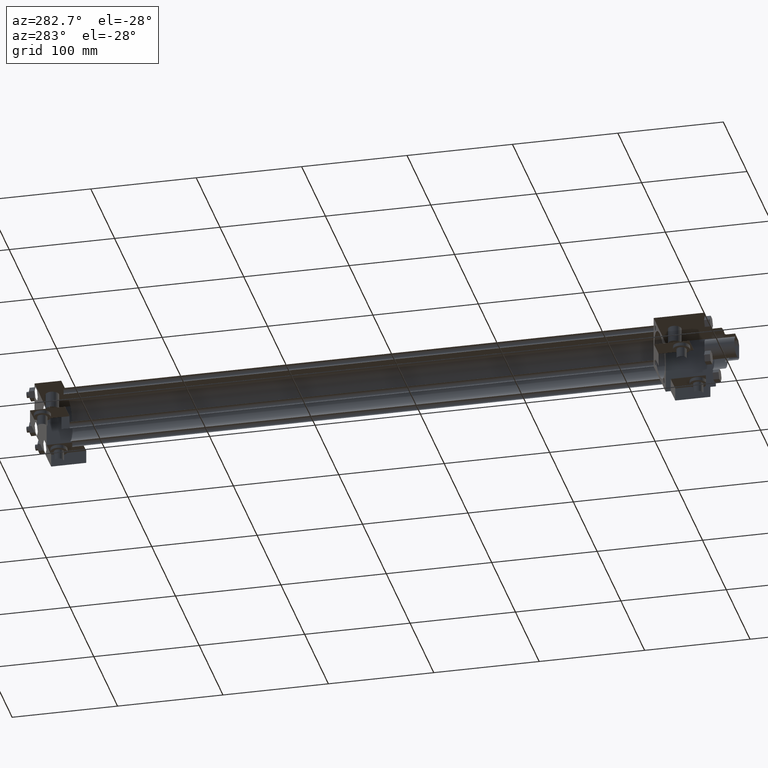
[diagram: clean part render]
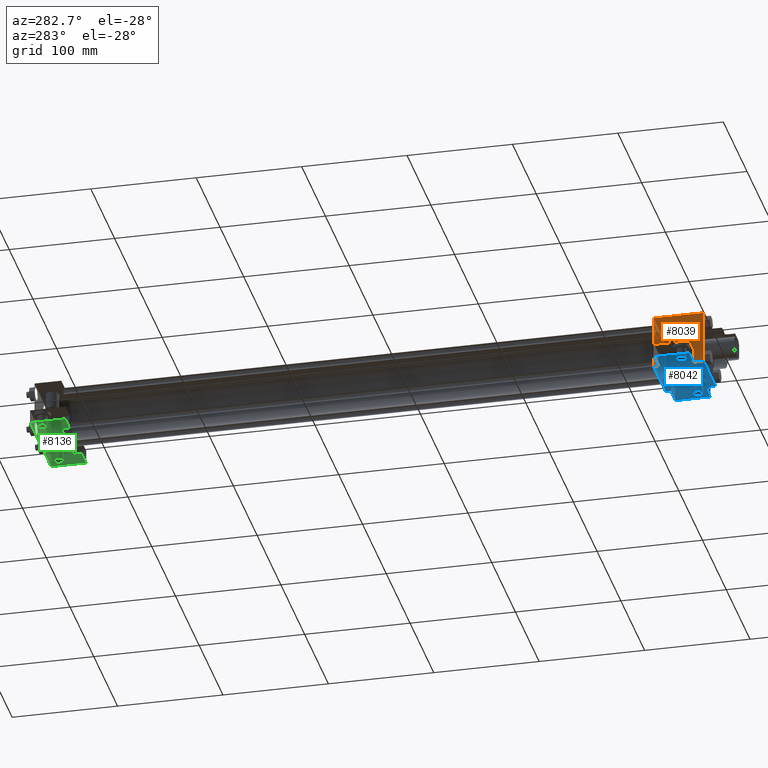
[diagram: same view with three faces highlighted in distinct colors, each labeled with its STEP entity id]
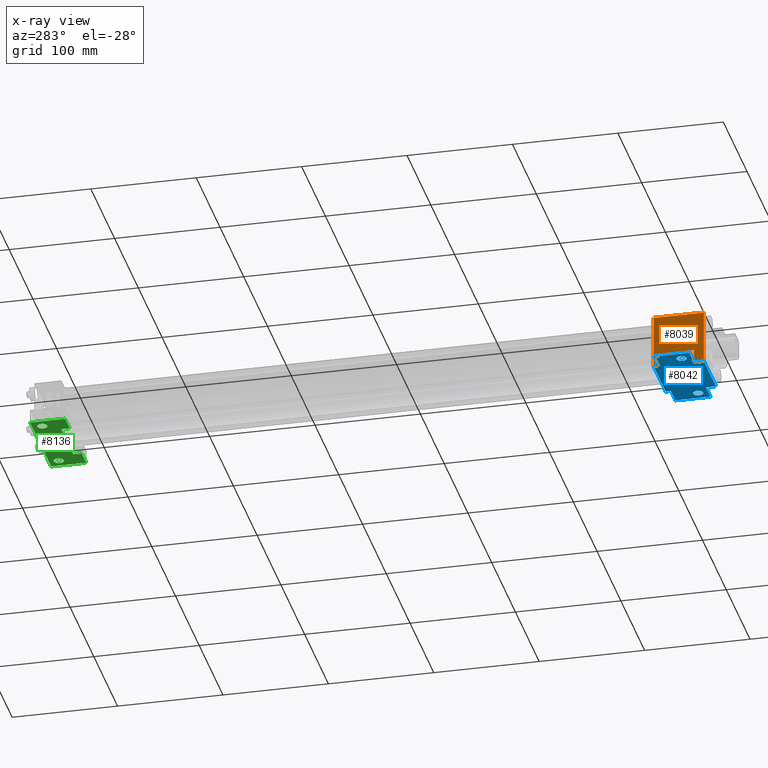
[diagram: x-ray of the same camera — body ghosted, the three highlighted faces saturated]
A machine part, auxiliary view with three faces highlighted in distinct colors.
The next image is the same camera in x-ray (body ghosted, the three faces saturated) — at least one of them is partly hidden behind the body in this view.
Their STEP definitions:

[orange] entity #8039 — the highlighted planar face has unit normal (-1, 0, 0).
#2037=EDGE_CURVE('',#2043,#2043,#2038,.T.);
#2038=CIRCLE('',#2039,2.778125000E+000);
#2039=AXIS2_PLACEMENT_3D('',#2040,#2041,#2042);
#2040=CARTESIAN_POINT('',(-2.540000000E+001,5.556250000E+001,0.000000000E+000));
#2041=DIRECTION('',(1.0E+000,0.0E+000,0.0E+000));
#2042=DIRECTION('',(0.0E+000,0.0E+000,1.0E+000));
#2043=VERTEX_POINT('',#2044);
#2044=CARTESIAN_POINT('',(-2.540000000E+001,5.556250000E+001,2.778125000E+000));
#2302=EDGE_CURVE('',#2307,#2308,#2303,.T.);
#2303=LINE('',#2304,#2305);
#2304=CARTESIAN_POINT('',(-2.540000000E+001,3.492500000E+001,-1.270000000E+001));
#2305=VECTOR('',#2306,1.0E+000);
#2306=DIRECTION('',(0.0E+000,-1.0E+000,0.0E+000));
#2307=VERTEX_POINT('',#2309);
#2308=VERTEX_POINT('',#2310);
#2309=CARTESIAN_POINT('',(-2.540000000E+001,6.826250000E+001,-1.270000000E+001));
#2310=CARTESIAN_POINT('',(-2.540000000E+001,3.492500000E+001,-1.270000000E+001));
#2347=VERTEX_POINT('',#2349);
#2349=CARTESIAN_POINT('',(-2.540000000E+001,6.826250000E+001,-2.540000000E+001));
#2355=EDGE_CURVE('',#2307,#2347,#2356,.T.);
#2356=LINE('',#2357,#2358);
#2357=CARTESIAN_POINT('',(-2.540000000E+001,6.826250000E+001,-1.270000000E+001));
#2358=VECTOR('',#2359,1.0E+000);
#2359=DIRECTION('',(0.0E+000,0.0E+000,-1.0E+000));
#2399=VERTEX_POINT('',#2400);
#2400=CARTESIAN_POINT('',(-2.540000000E+001,3.492500000E+001,-2.540000000E+001));
#2401=EDGE_CURVE('',#2308,#2399,#2402,.T.);
#2402=LINE('',#2403,#2404);
#2403=CARTESIAN_POINT('',(-2.540000000E+001,3.492500000E+001,-1.270000000E+001));
#2404=VECTOR('',#2405,1.0E+000);
#2405=DIRECTION('',(0.0E+000,0.0E+000,-1.0E+000));
#2529=FACE_OUTER_BOUND('',#2531,.T.);
#2530=FACE_BOUND('',#2532,.T.);
#2531=EDGE_LOOP('',(#2533));
#2532=EDGE_LOOP('',(#2534,#2535,#2536,#2537,#2538,#2539,#2540,#2541));
#2533=ORIENTED_EDGE('',*,*,#2037,.T.);
#2534=ORIENTED_EDGE('',*,*,#2355,.F.);
#2535=ORIENTED_EDGE('',*,*,#2302,.T.);
#2536=ORIENTED_EDGE('',*,*,#2401,.T.);
#2537=ORIENTED_EDGE('',*,*,#2542,.T.);
#2538=ORIENTED_EDGE('',*,*,#2549,.F.);
#2539=ORIENTED_EDGE('',*,*,#2556,.F.);
#2540=ORIENTED_EDGE('',*,*,#2563,.T.);
#2541=ORIENTED_EDGE('',*,*,#2570,.T.);
#2542=EDGE_CURVE('',#2399,#2547,#2543,.T.);
#2543=LINE('',#2544,#2545);
#2544=CARTESIAN_POINT('',(-2.540000000E+001,7.302500000E+001,-2.540000000E+001));
#2545=VECTOR('',#2546,1.0E+000);
#2546=DIRECTION('',(0.0E+000,-1.0E+000,0.0E+000));
#2547=VERTEX_POINT('',#2548);
#2548=CARTESIAN_POINT('',(-2.540000000E+001,2.540000000E+001,-2.540000000E+001));
#2549=EDGE_CURVE('',#2554,#2547,#2550,.T.);
#2550=LINE('',#2551,#2552);
#2551=CARTESIAN_POINT('',(-2.540000000E+001,2.540000000E+001,2.540000000E+001));
#2552=VECTOR('',#2553,1.0E+000);
#2553=DIRECTION('',(0.0E+000,0.0E+000,-1.0E+000));
#2554=VERTEX_POINT('',#2555);
#2555=CARTESIAN_POINT('',(-2.540000000E+001,2.540000000E+001,2.540000000E+001));
#2556=EDGE_CURVE('',#2561,#2554,#2557,.T.);
#2557=LINE('',#2558,#2559);
#2558=CARTESIAN_POINT('',(-2.540000000E+001,7.302500000E+001,2.540000000E+001));
#2559=VECTOR('',#2560,1.0E+000);
#2560=DIRECTION('',(0.0E+000,-1.0E+000,0.0E+000));
#2561=VERTEX_POINT('',#2562);
#2562=CARTESIAN_POINT('',(-2.540000000E+001,7.302500000E+001,2.540000000E+001));
#2563=EDGE_CURVE('',#2561,#2568,#2564,.T.);
#2564=LINE('',#2565,#2566);
#2565=CARTESIAN_POINT('',(-2.540000000E+001,7.302500000E+001,2.540000000E+001));
#2566=VECTOR('',#2567,1.0E+000);
#2567=DIRECTION('',(0.0E+000,0.0E+000,-1.0E+000));
#2568=VERTEX_POINT('',#2569);
#2569=CARTESIAN_POINT('',(-2.540000000E+001,7.302500000E+001,-2.540000000E+001));
#2570=EDGE_CURVE('',#2568,#2347,#2543,.T.);
#2571=PLANE('',#2572);
#2572=AXIS2_PLACEMENT_3D('',#2573,#2574,#2575);
#2573=CARTESIAN_POINT('',(-2.540000000E+001,7.302500000E+001,2.540000000E+001));
#2574=DIRECTION('',(-1.0E+000,0.0E+000,0.0E+000));
#2575=DIRECTION('',(0.0E+000,0.0E+000,1.0E+000));
#8039=ADVANCED_FACE('',(#2529,#2530),#2571,.T.);

[blue] entity #8042 — the highlighted planar face has unit normal (0, 0, -1).
#2107=EDGE_CURVE('',#2113,#2113,#2108,.T.);
#2108=CIRCLE('',#2109,2.778125000E+000);
#2109=AXIS2_PLACEMENT_3D('',#2110,#2111,#2112);
#2110=CARTESIAN_POINT('',(0.000000000E+000,5.556250000E+001,-2.540000000E+001));
#2111=DIRECTION('',(0.0E+000,0.0E+000,1.0E+000));
#2112=DIRECTION('',(0.0E+000,1.0E+000,0.0E+000));
#2113=VERTEX_POINT('',#2114);
#2114=CARTESIAN_POINT('',(0.000000000E+000,5.834062500E+001,-2.540000000E+001));
#2215=EDGE_CURVE('',#2221,#2221,#2216,.T.);
#2216=CIRCLE('',#2217,4.762500000E+000);
#2217=AXIS2_PLACEMENT_3D('',#2218,#2219,#2220);
#2218=CARTESIAN_POINT('',(3.492500000E+001,4.445000000E+001,-2.540000000E+001));
#2219=DIRECTION('',(0.0E+000,0.0E+000,-1.0E+000));
#2220=DIRECTION('',(-1.0E+000,0.0E+000,0.0E+000));
#2221=VERTEX_POINT('',#2222);
#2222=CARTESIAN_POINT('',(3.968750000E+001,4.445000000E+001,-2.540000000E+001));
#2280=EDGE_CURVE('',#2286,#2286,#2281,.T.);
#2281=CIRCLE('',#2282,4.762500000E+000);
#2282=AXIS2_PLACEMENT_3D('',#2283,#2284,#2285);
#2283=CARTESIAN_POINT('',(-3.492500000E+001,4.445000000E+001,-2.540000000E+001));
#2284=DIRECTION('',(0.0E+000,0.0E+000,-1.0E+000));
#2285=DIRECTION('',(-1.0E+000,0.0E+000,0.0E+000));
#2286=VERTEX_POINT('',#2287);
#2287=CARTESIAN_POINT('',(-3.016250000E+001,4.445000000E+001,-2.540000000E+001));
#2341=EDGE_CURVE('',#2346,#2347,#2342,.T.);
#2342=LINE('',#2343,#2344);
#2343=CARTESIAN_POINT('',(-4.445000000E+001,6.826250000E+001,-2.540000000E+001));
#2344=VECTOR('',#2345,1.0E+000);
#2345=DIRECTION('',(1.0E+000,0.0E+000,0.0E+000));
#2346=VERTEX_POINT('',#2348);
#2347=VERTEX_POINT('',#2349);
#2348=CARTESIAN_POINT('',(-4.445000000E+001,6.826250000E+001,-2.540000000E+001));
#2349=CARTESIAN_POINT('',(-2.540000000E+001,6.826250000E+001,-2.540000000E+001));
#2371=EDGE_CURVE('',#2376,#2346,#2372,.T.);
#2372=LINE('',#2373,#2374);
#2373=CARTESIAN_POINT('',(-4.445000000E+001,3.492500000E+001,-2.540000000E+001));
#2374=VECTOR('',#2375,1.0E+000);
#2375=DIRECTION('',(0.0E+000,1.0E+000,0.0E+000));
#2376=VERTEX_POINT('',#2377);
#2377=CARTESIAN_POINT('',(-4.445000000E+001,3.492500000E+001,-2.540000000E+001));
#2394=EDGE_CURVE('',#2399,#2376,#2395,.T.);
#2395=LINE('',#2396,#2397);
#2396=CARTESIAN_POINT('',(-2.540000000E+001,3.492500000E+001,-2.540000000E+001));
#2397=VECTOR('',#2398,1.0E+000);
#2398=DIRECTION('',(-1.0E+000,0.0E+000,0.0E+000));
#2399=VERTEX_POINT('',#2400);
#2400=CARTESIAN_POINT('',(-2.540000000E+001,3.492500000E+001,-2.540000000E+001));
#2459=EDGE_CURVE('',#2464,#2465,#2460,.T.);
#2460=LINE('',#2461,#2462);
#2461=CARTESIAN_POINT('',(4.445000000E+001,6.826250000E+001,-2.540000000E+001));
#2462=VECTOR('',#2463,1.0E+000);
#2463=DIRECTION('',(-1.0E+000,0.0E+000,0.0E+000));
#2464=VERTEX_POINT('',#2466);
#2465=VERTEX_POINT('',#2467);
#2466=CARTESIAN_POINT('',(4.445000000E+001,6.826250000E+001,-2.540000000E+001));
#2467=CARTESIAN_POINT('',(2.540000000E+001,6.826250000E+001,-2.540000000E+001));
#2489=EDGE_CURVE('',#2494,#2464,#2490,.T.);
#2490=LINE('',#2491,#2492);
#2491=CARTESIAN_POINT('',(4.445000000E+001,3.492500000E+001,-2.540000000E+001));
#2492=VECTOR('',#2493,1.0E+000);
#2493=DIRECTION('',(0.0E+000,1.0E+000,0.0E+000));
#2494=VERTEX_POINT('',#2495);
#2495=CARTESIAN_POINT('',(4.445000000E+001,3.492500000E+001,-2.540000000E+001));
#2512=EDGE_CURVE('',#2517,#2494,#2513,.T.);
#2513=LINE('',#2514,#2515);
#2514=CARTESIAN_POINT('',(2.540000000E+001,3.492500000E+001,-2.540000000E+001));
#2515=VECTOR('',#2516,1.0E+000);
#2516=DIRECTION('',(1.0E+000,0.0E+000,0.0E+000));
#2517=VERTEX_POINT('',#2518);
#2518=CARTESIAN_POINT('',(2.540000000E+001,3.492500000E+001,-2.540000000E+001));
#2542=EDGE_CURVE('',#2399,#2547,#2543,.T.);
#2543=LINE('',#2544,#2545);
#2544=CARTESIAN_POINT('',(-2.540000000E+001,7.302500000E+001,-2.540000000E+001));
#2545=VECTOR('',#2546,1.0E+000);
#2546=DIRECTION('',(0.0E+000,-1.0E+000,0.0E+000));
#2547=VERTEX_POINT('',#2548);
#2548=CARTESIAN_POINT('',(-2.540000000E+001,2.540000000E+001,-2.540000000E+001));
#2568=VERTEX_POINT('',#2569);
#2569=CARTESIAN_POINT('',(-2.540000000E+001,7.302500000E+001,-2.540000000E+001));
#2570=EDGE_CURVE('',#2568,#2347,#2543,.T.);
#2622=EDGE_CURVE('',#2627,#2465,#2623,.T.);
#2623=LINE('',#2624,#2625);
#2624=CARTESIAN_POINT('',(2.540000000E+001,7.302500000E+001,-2.540000000E+001));
#2625=VECTOR('',#2626,1.0E+000);
#2626=DIRECTION('',(0.0E+000,-1.0E+000,0.0E+000));
#2627=VERTEX_POINT('',#2628);
#2628=CARTESIAN_POINT('',(2.540000000E+001,7.302500000E+001,-2.540000000E+001));
#2639=VERTEX_POINT('',#2640);
#2640=CARTESIAN_POINT('',(2.540000000E+001,2.540000000E+001,-2.540000000E+001));
#2641=EDGE_CURVE('',#2517,#2639,#2623,.T.);
#2647=FACE_OUTER_BOUND('',#2651,.T.);
#2648=FACE_BOUND('',#2652,.T.);
#2649=FACE_BOUND('',#2653,.T.);
#2650=FACE_BOUND('',#2654,.T.);
#2651=EDGE_LOOP('',(#2655));
#2652=EDGE_LOOP('',(#2656));
#2653=EDGE_LOOP('',(#2657));
#2654=EDGE_LOOP('',(#2658,#2659,#2660,#2661,#2662,#2663,#2664,#2665,#2666,
   #2667,#2668,#2669));
#2655=ORIENTED_EDGE('',*,*,#2107,.T.);
#2656=ORIENTED_EDGE('',*,*,#2215,.F.);
#2657=ORIENTED_EDGE('',*,*,#2280,.F.);
#2658=ORIENTED_EDGE('',*,*,#2670,.F.);
#2659=ORIENTED_EDGE('',*,*,#2542,.F.);
#2660=ORIENTED_EDGE('',*,*,#2394,.T.);
#2661=ORIENTED_EDGE('',*,*,#2371,.T.);
#2662=ORIENTED_EDGE('',*,*,#2341,.T.);
#2663=ORIENTED_EDGE('',*,*,#2570,.F.);
#2664=ORIENTED_EDGE('',*,*,#2675,.T.);
#2665=ORIENTED_EDGE('',*,*,#2622,.T.);
#2666=ORIENTED_EDGE('',*,*,#2459,.F.);
#2667=ORIENTED_EDGE('',*,*,#2489,.F.);
#2668=ORIENTED_EDGE('',*,*,#2512,.F.);
#2669=ORIENTED_EDGE('',*,*,#2641,.T.);
#2670=EDGE_CURVE('',#2547,#2639,#2671,.T.);
#2671=LINE('',#2672,#2673);
#2672=CARTESIAN_POINT('',(-2.540000000E+001,2.540000000E+001,-2.540000000E+001));
#2673=VECTOR('',#2674,1.0E+000);
#2674=DIRECTION('',(1.0E+000,0.0E+000,0.0E+000));
#2675=EDGE_CURVE('',#2568,#2627,#2676,.T.);
#2676=LINE('',#2677,#2678);
#2677=CARTESIAN_POINT('',(-2.540000000E+001,7.302500000E+001,-2.540000000E+001));
#2678=VECTOR('',#2679,1.0E+000);
#2679=DIRECTION('',(1.0E+000,0.0E+000,0.0E+000));
#2680=PLANE('',#2681);
#2681=AXIS2_PLACEMENT_3D('',#2682,#2683,#2684);
#2682=CARTESIAN_POINT('',(-2.540000000E+001,7.302500000E+001,-2.540000000E+001));
#2683=DIRECTION('',(0.0E+000,0.0E+000,-1.0E+000));
#2684=DIRECTION('',(-1.0E+000,0.0E+000,0.0E+000));
#8042=ADVANCED_FACE('',(#2647,#2648,#2649,#2650),#2680,.T.);

[green] entity #8136 — the highlighted planar face has unit normal (0, 0, 1).
#5821=EDGE_CURVE('',#5827,#5827,#5822,.T.);
#5822=CIRCLE('',#5823,2.778125000E+000);
#5823=AXIS2_PLACEMENT_3D('',#5824,#5825,#5826);
#5824=CARTESIAN_POINT('',(0.000000000E+000,6.492875000E+002,-2.540000000E+001));
#5825=DIRECTION('',(0.0E+000,0.0E+000,1.0E+000));
#5826=DIRECTION('',(1.0E+000,0.0E+000,0.0E+000));
#5827=VERTEX_POINT('',#5828);
#5828=CARTESIAN_POINT('',(2.778125000E+000,6.492875000E+002,-2.540000000E+001));
#5928=EDGE_CURVE('',#5934,#5934,#5929,.T.);
#5929=CIRCLE('',#5930,4.762500000E+000);
#5930=AXIS2_PLACEMENT_3D('',#5931,#5932,#5933);
#5931=CARTESIAN_POINT('',(-3.492500000E+001,6.508750000E+002,-2.540000000E+001));
#5932=DIRECTION('',(0.0E+000,0.0E+000,1.0E+000));
#5933=DIRECTION('',(1.0E+000,0.0E+000,0.0E+000));
#5934=VERTEX_POINT('',#5935);
#5935=CARTESIAN_POINT('',(-3.016250000E+001,6.508750000E+002,-2.540000000E+001));
#5993=EDGE_CURVE('',#5999,#5999,#5994,.T.);
#5994=CIRCLE('',#5995,4.762500000E+000);
#5995=AXIS2_PLACEMENT_3D('',#5996,#5997,#5998);
#5996=CARTESIAN_POINT('',(3.492500000E+001,6.508750000E+002,-2.540000000E+001));
#5997=DIRECTION('',(0.0E+000,0.0E+000,1.0E+000));
#5998=DIRECTION('',(1.0E+000,0.0E+000,0.0E+000));
#5999=VERTEX_POINT('',#6000);
#6000=CARTESIAN_POINT('',(3.968750000E+001,6.508750000E+002,-2.540000000E+001));
#6007=FACE_OUTER_BOUND('',#6011,.T.);
#6008=FACE_BOUND('',#6012,.T.);
#6009=FACE_BOUND('',#6013,.T.);
#6010=FACE_BOUND('',#6014,.T.);
#6011=EDGE_LOOP('',(#6015));
#6012=EDGE_LOOP('',(#6016));
#6013=EDGE_LOOP('',(#6017));
#6014=EDGE_LOOP('',(#6018,#6019,#6020,#6021,#6022,#6023,#6024,#6025));
#6015=ORIENTED_EDGE('',*,*,#5821,.T.);
#6016=ORIENTED_EDGE('',*,*,#5928,.T.);
#6017=ORIENTED_EDGE('',*,*,#5993,.T.);
#6018=ORIENTED_EDGE('',*,*,#6026,.T.);
#6019=ORIENTED_EDGE('',*,*,#6035,.T.);
#6020=ORIENTED_EDGE('',*,*,#6042,.T.);
#6021=ORIENTED_EDGE('',*,*,#6049,.F.);
#6022=ORIENTED_EDGE('',*,*,#6056,.F.);
#6023=ORIENTED_EDGE('',*,*,#6063,.T.);
#6024=ORIENTED_EDGE('',*,*,#6066,.F.);
#6025=ORIENTED_EDGE('',*,*,#6073,.T.);
#6026=EDGE_CURVE('',#6031,#6032,#6027,.T.);
#6027=LINE('',#6028,#6029);
#6028=CARTESIAN_POINT('',(-2.540000000E+001,6.604000000E+002,-2.540000000E+001));
#6029=VECTOR('',#6030,1.0E+000);
#6030=DIRECTION('',(0.0E+000,-1.0E+000,0.0E+000));
#6031=VERTEX_POINT('',#6033);
#6032=VERTEX_POINT('',#6034);
#6033=CARTESIAN_POINT('',(-2.540000000E+001,6.350000000E+002,-2.540000000E+001));
#6034=CARTESIAN_POINT('',(-2.540000000E+001,6.270625000E+002,-2.540000000E+001));
#6035=EDGE_CURVE('',#6032,#6040,#6036,.T.);
#6036=LINE('',#6037,#6038);
#6037=CARTESIAN_POINT('',(4.445000000E+001,6.270625000E+002,-2.540000000E+001));
#6038=VECTOR('',#6039,1.0E+000);
#6039=DIRECTION('',(-1.0E+000,0.0E+000,0.0E+000));
#6040=VERTEX_POINT('',#6041);
#6041=CARTESIAN_POINT('',(-4.445000000E+001,6.270625000E+002,-2.540000000E+001));
#6042=EDGE_CURVE('',#6040,#6047,#6043,.T.);
#6043=LINE('',#6044,#6045);
#6044=CARTESIAN_POINT('',(-4.445000000E+001,6.270625000E+002,-2.540000000E+001));
#6045=VECTOR('',#6046,1.0E+000);
#6046=DIRECTION('',(0.0E+000,1.0E+000,0.0E+000));
#6047=VERTEX_POINT('',#6048);
#6048=CARTESIAN_POINT('',(-4.445000000E+001,6.604000000E+002,-2.540000000E+001));
#6049=EDGE_CURVE('',#6054,#6047,#6050,.T.);
#6050=LINE('',#6051,#6052);
#6051=CARTESIAN_POINT('',(2.540000000E+001,6.604000000E+002,-2.540000000E+001));
#6052=VECTOR('',#6053,1.0E+000);
#6053=DIRECTION('',(-1.0E+000,0.0E+000,0.0E+000));
#6054=VERTEX_POINT('',#6055);
#6055=CARTESIAN_POINT('',(4.445000000E+001,6.604000000E+002,-2.540000000E+001));
#6056=EDGE_CURVE('',#6061,#6054,#6057,.T.);
#6057=LINE('',#6058,#6059);
#6058=CARTESIAN_POINT('',(4.445000000E+001,6.270625000E+002,-2.540000000E+001));
#6059=VECTOR('',#6060,1.0E+000);
#6060=DIRECTION('',(0.0E+000,1.0E+000,0.0E+000));
#6061=VERTEX_POINT('',#6062);
#6062=CARTESIAN_POINT('',(4.445000000E+001,6.270625000E+002,-2.540000000E+001));
#6063=EDGE_CURVE('',#6061,#6064,#6036,.T.);
#6064=VERTEX_POINT('',#6065);
#6065=CARTESIAN_POINT('',(2.540000000E+001,6.270625000E+002,-2.540000000E+001));
#6066=EDGE_CURVE('',#6071,#6064,#6067,.T.);
#6067=LINE('',#6068,#6069);
#6068=CARTESIAN_POINT('',(2.540000000E+001,6.604000000E+002,-2.540000000E+001));
#6069=VECTOR('',#6070,1.0E+000);
#6070=DIRECTION('',(0.0E+000,-1.0E+000,0.0E+000));
#6071=VERTEX_POINT('',#6072);
#6072=CARTESIAN_POINT('',(2.540000000E+001,6.350000000E+002,-2.540000000E+001));
#6073=EDGE_CURVE('',#6071,#6031,#6074,.T.);
#6074=LINE('',#6075,#6076);
#6075=CARTESIAN_POINT('',(2.540000000E+001,6.350000000E+002,-2.540000000E+001));
#6076=VECTOR('',#6077,1.0E+000);
#6077=DIRECTION('',(-1.0E+000,0.0E+000,0.0E+000));
#6078=PLANE('',#6079);
#6079=AXIS2_PLACEMENT_3D('',#6080,#6081,#6082);
#6080=CARTESIAN_POINT('',(4.445000000E+001,6.604000000E+002,-2.540000000E+001));
#6081=DIRECTION('',(0.0E+000,0.0E+000,1.0E+000));
#6082=DIRECTION('',(1.0E+000,0.0E+000,0.0E+000));
#8136=ADVANCED_FACE('',(#6007,#6008,#6009,#6010),#6078,.F.);